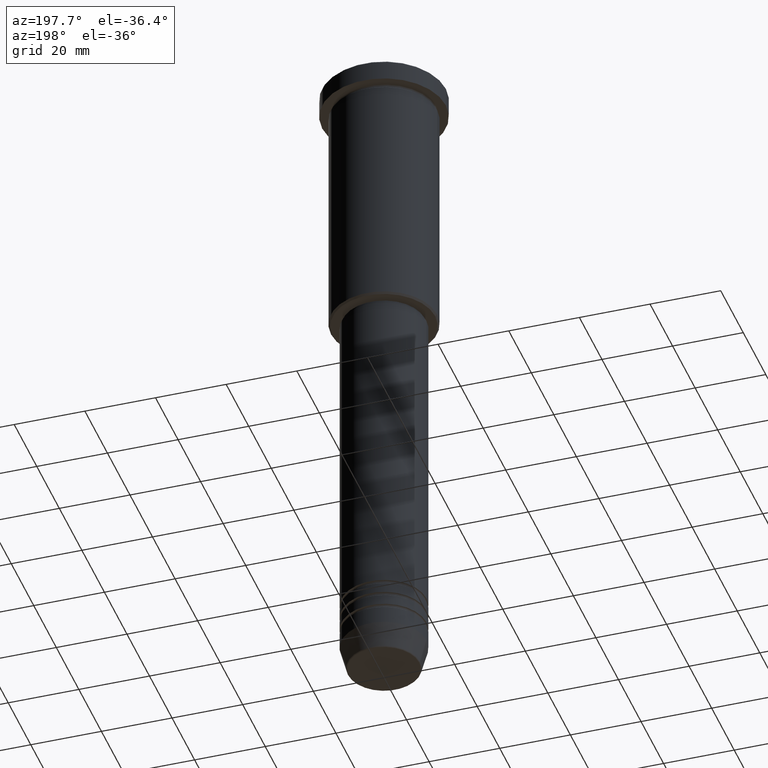
[diagram: clean part render]
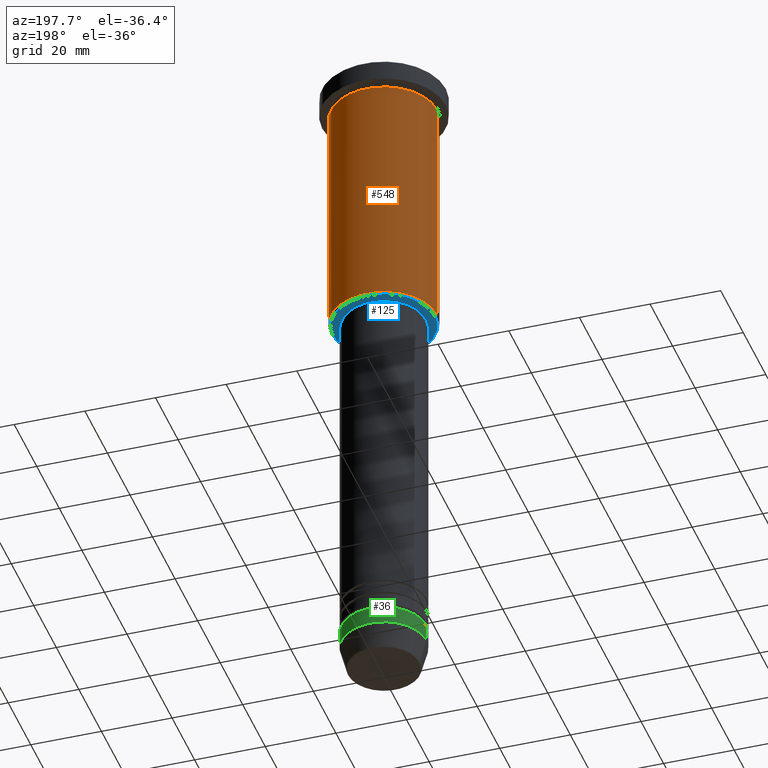
[diagram: same view with three faces highlighted in distinct colors, each labeled with its STEP entity id]
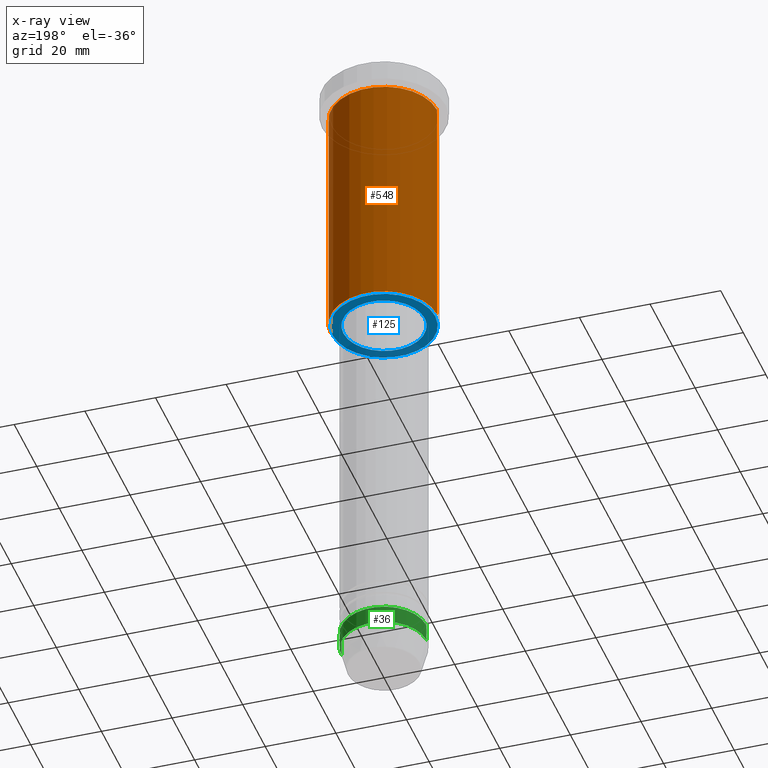
[diagram: x-ray of the same camera — body ghosted, the three highlighted faces saturated]
A machine part, auxiliary view with three faces highlighted in distinct colors.
The next image is the same camera in x-ray (body ghosted, the three faces saturated) — at least one of them is partly hidden behind the body in this view.
Their STEP definitions:

[orange] entity #548 — the highlighted cylindrical surface (partial cylindrical patch) has radius 15 mm, axis along (-0, -0, 1).
#70 = AXIS2_PLACEMENT_3D ( 'NONE', #976, #522, #1058 ) ;
#80 = VERTEX_POINT ( 'NONE', #568 ) ;
#87 = DIRECTION ( 'NONE',  ( -0.000000000000000000, -0.000000000000000000, 1.000000000000000000 ) ) ;
#164 = VERTEX_POINT ( 'NONE', #1177 ) ;
#174 = ORIENTED_EDGE ( 'NONE', *, *, #672, .T. ) ;
#261 = DIRECTION ( 'NONE',  ( -0.000000000000000000, -0.000000000000000000, 1.000000000000000000 ) ) ;
#293 = CARTESIAN_POINT ( 'NONE',  ( -15.00000000000000000, 1.836970198721029589E-15, -6.999999999999995559 ) ) ;
#296 = AXIS2_PLACEMENT_3D ( 'NONE', #1157, #870, #876 ) ;
#328 = CIRCLE ( 'NONE', #392, 15.00000000000000000 ) ;
#341 = CARTESIAN_POINT ( 'NONE',  ( -15.00000000000000000, 1.836970198721029589E-15, 0.000000000000000000 ) ) ;
#360 = DIRECTION ( 'NONE',  ( 1.000000000000000000, 0.000000000000000000, 0.000000000000000000 ) ) ;
#392 = AXIS2_PLACEMENT_3D ( 'NONE', #995, #261, #360 ) ;
#409 = EDGE_LOOP ( 'NONE', ( #899, #174, #1077, #651 ) ) ;
#490 = CARTESIAN_POINT ( 'NONE',  ( 15.00000000000000000, 0.000000000000000000, 0.000000000000000000 ) ) ;
#522 = DIRECTION ( 'NONE',  ( -0.000000000000000000, -0.000000000000000000, 1.000000000000000000 ) ) ;
#536 = LINE ( 'NONE', #341, #869 ) ;
#548 = ADVANCED_FACE ( 'NONE', ( #580 ), #860, .T. ) ;
#554 = CARTESIAN_POINT ( 'NONE',  ( -15.00000000000000000, 1.836970198721029589E-15, -75.49999999999997158 ) ) ;
#568 = CARTESIAN_POINT ( 'NONE',  ( 15.00000000000000000, 0.000000000000000000, -75.49999999999997158 ) ) ;
#580 = FACE_OUTER_BOUND ( 'NONE', #409, .T. ) ;
#599 = VECTOR ( 'NONE', #762, 1000.000000000000000 ) ;
#651 = ORIENTED_EDGE ( 'NONE', *, *, #816, .F. ) ;
#666 = EDGE_CURVE ( 'NONE', #164, #1108, #328, .T. ) ;
#672 = EDGE_CURVE ( 'NONE', #744, #1108, #536, .T. ) ;
#696 = EDGE_CURVE ( 'NONE', #80, #744, #1103, .T. ) ;
#744 = VERTEX_POINT ( 'NONE', #554 ) ;
#762 = DIRECTION ( 'NONE',  ( -0.000000000000000000, -0.000000000000000000, 1.000000000000000000 ) ) ;
#816 = EDGE_CURVE ( 'NONE', #80, #164, #1037, .T. ) ;
#860 = CYLINDRICAL_SURFACE ( 'NONE', #296, 15.00000000000000000 ) ;
#869 = VECTOR ( 'NONE', #87, 1000.000000000000000 ) ;
#870 = DIRECTION ( 'NONE',  ( -0.000000000000000000, -0.000000000000000000, 1.000000000000000000 ) ) ;
#876 = DIRECTION ( 'NONE',  ( 1.000000000000000000, 0.000000000000000000, 0.000000000000000000 ) ) ;
#899 = ORIENTED_EDGE ( 'NONE', *, *, #696, .T. ) ;
#976 = CARTESIAN_POINT ( 'NONE',  ( 0.000000000000000000, 0.000000000000000000, -75.49999999999997158 ) ) ;
#995 = CARTESIAN_POINT ( 'NONE',  ( 0.000000000000000000, 0.000000000000000000, -6.999999999999995559 ) ) ;
#1037 = LINE ( 'NONE', #490, #599 ) ;
#1058 = DIRECTION ( 'NONE',  ( -1.000000000000000000, 0.000000000000000000, 0.000000000000000000 ) ) ;
#1077 = ORIENTED_EDGE ( 'NONE', *, *, #666, .F. ) ;
#1103 = CIRCLE ( 'NONE', #70, 15.00000000000000000 ) ;
#1108 = VERTEX_POINT ( 'NONE', #293 ) ;
#1157 = CARTESIAN_POINT ( 'NONE',  ( 0.000000000000000000, 0.000000000000000000, 0.000000000000000000 ) ) ;
#1177 = CARTESIAN_POINT ( 'NONE',  ( 15.00000000000000000, 0.000000000000000000, -6.999999999999995559 ) ) ;

[blue] entity #125 — the highlighted planar face has unit normal (0, 0, -1).
#22 = DIRECTION ( 'NONE',  ( -0.000000000000000000, -0.000000000000000000, 1.000000000000000000 ) ) ;
#26 = FACE_OUTER_BOUND ( 'NONE', #246, .T. ) ;
#49 = VERTEX_POINT ( 'NONE', #307 ) ;
#59 = ORIENTED_EDGE ( 'NONE', *, *, #882, .T. ) ;
#64 = CARTESIAN_POINT ( 'NONE',  ( 0.000000000000000000, 0.000000000000000000, -76.00000000000001421 ) ) ;
#82 = CARTESIAN_POINT ( 'NONE',  ( 0.000000000000000000, 0.000000000000000000, -76.00000000000001421 ) ) ;
#98 = EDGE_LOOP ( 'NONE', ( #867, #927 ) ) ;
#103 = VERTEX_POINT ( 'NONE', #395 ) ;
#125 = ADVANCED_FACE ( 'NONE', ( #26, #133 ), #382, .T. ) ;
#133 = FACE_BOUND ( 'NONE', #98, .T. ) ;
#185 = ORIENTED_EDGE ( 'NONE', *, *, #579, .T. ) ;
#193 = DIRECTION ( 'NONE',  ( 1.000000000000000000, 0.000000000000000000, 0.000000000000000000 ) ) ;
#216 = DIRECTION ( 'NONE',  ( -1.000000000000000000, 0.000000000000000000, 0.000000000000000000 ) ) ;
#228 = EDGE_CURVE ( 'NONE', #103, #265, #604, .T. ) ;
#242 = AXIS2_PLACEMENT_3D ( 'NONE', #82, #353, #1002 ) ;
#246 = EDGE_LOOP ( 'NONE', ( #59, #185 ) ) ;
#265 = VERTEX_POINT ( 'NONE', #977 ) ;
#278 = CIRCLE ( 'NONE', #620, 14.49999999999998401 ) ;
#299 = DIRECTION ( 'NONE',  ( 0.000000000000000000, 0.000000000000000000, -1.000000000000000000 ) ) ;
#307 = CARTESIAN_POINT ( 'NONE',  ( -14.49999999999998401, 1.806354028742345013E-15, -76.00000000000001421 ) ) ;
#350 = AXIS2_PLACEMENT_3D ( 'NONE', #1008, #22, #193 ) ;
#353 = DIRECTION ( 'NONE',  ( -0.000000000000000000, -0.000000000000000000, 1.000000000000000000 ) ) ;
#382 = PLANE ( 'NONE',  #793 ) ;
#395 = CARTESIAN_POINT ( 'NONE',  ( 11.50000000000000000, 0.000000000000000000, -76.00000000000001421 ) ) ;
#418 = CARTESIAN_POINT ( 'NONE',  ( 0.000000000000000000, 0.000000000000000000, -76.00000000000001421 ) ) ;
#539 = DIRECTION ( 'NONE',  ( -1.000000000000000000, 0.000000000000000000, 0.000000000000000000 ) ) ;
#575 = DIRECTION ( 'NONE',  ( -1.000000000000000000, 0.000000000000000000, -0.000000000000000000 ) ) ;
#579 = EDGE_CURVE ( 'NONE', #49, #1013, #278, .T. ) ;
#604 = CIRCLE ( 'NONE', #242, 11.50000000000000000 ) ;
#620 = AXIS2_PLACEMENT_3D ( 'NONE', #418, #1151, #216 ) ;
#670 = CARTESIAN_POINT ( 'NONE',  ( 0.000000000000000000, 15.00000000000000000, -76.00000000000001421 ) ) ;
#772 = EDGE_CURVE ( 'NONE', #265, #103, #981, .T. ) ;
#793 = AXIS2_PLACEMENT_3D ( 'NONE', #670, #299, #575 ) ;
#867 = ORIENTED_EDGE ( 'NONE', *, *, #228, .T. ) ;
#882 = EDGE_CURVE ( 'NONE', #1013, #49, #1104, .T. ) ;
#927 = ORIENTED_EDGE ( 'NONE', *, *, #772, .T. ) ;
#951 = AXIS2_PLACEMENT_3D ( 'NONE', #64, #967, #539 ) ;
#967 = DIRECTION ( 'NONE',  ( 0.000000000000000000, 0.000000000000000000, -1.000000000000000000 ) ) ;
#977 = CARTESIAN_POINT ( 'NONE',  ( -11.50000000000000000, 1.408343819019456176E-15, -76.00000000000001421 ) ) ;
#981 = CIRCLE ( 'NONE', #350, 11.50000000000000000 ) ;
#1002 = DIRECTION ( 'NONE',  ( 1.000000000000000000, 0.000000000000000000, 0.000000000000000000 ) ) ;
#1006 = CARTESIAN_POINT ( 'NONE',  ( 14.49999999999998401, 0.000000000000000000, -76.00000000000001421 ) ) ;
#1008 = CARTESIAN_POINT ( 'NONE',  ( 0.000000000000000000, 0.000000000000000000, -76.00000000000001421 ) ) ;
#1013 = VERTEX_POINT ( 'NONE', #1006 ) ;
#1104 = CIRCLE ( 'NONE', #951, 14.49999999999998401 ) ;
#1151 = DIRECTION ( 'NONE',  ( 0.000000000000000000, 0.000000000000000000, -1.000000000000000000 ) ) ;

[green] entity #36 — the highlighted cylindrical surface (partial cylindrical patch) has radius 12 mm, axis along (-0, -0, 1).
#36 = ADVANCED_FACE ( 'NONE', ( #183 ), #543, .T. ) ;
#37 = AXIS2_PLACEMENT_3D ( 'NONE', #879, #885, #349 ) ;
#124 = LINE ( 'NONE', #1095, #132 ) ;
#132 = VECTOR ( 'NONE', #1101, 1000.000000000000000 ) ;
#138 = CARTESIAN_POINT ( 'NONE',  ( 0.000000000000000000, 0.000000000000000000, -179.0000000000000284 ) ) ;
#147 = ORIENTED_EDGE ( 'NONE', *, *, #848, .T. ) ;
#163 = EDGE_CURVE ( 'NONE', #1173, #272, #629, .T. ) ;
#183 = FACE_OUTER_BOUND ( 'NONE', #906, .T. ) ;
#272 = VERTEX_POINT ( 'NONE', #447 ) ;
#302 = AXIS2_PLACEMENT_3D ( 'NONE', #912, #457, #972 ) ;
#325 = CARTESIAN_POINT ( 'NONE',  ( 12.00000000000000000, 0.000000000000000000, -184.0000000000000000 ) ) ;
#349 = DIRECTION ( 'NONE',  ( 1.000000000000000000, 0.000000000000000000, 0.000000000000000000 ) ) ;
#396 = CARTESIAN_POINT ( 'NONE',  ( 12.00000000000000000, 0.000000000000000000, -179.0000000000000284 ) ) ;
#447 = CARTESIAN_POINT ( 'NONE',  ( -12.00000000000000000, 1.469576158976823947E-15, -179.0000000000000284 ) ) ;
#457 = DIRECTION ( 'NONE',  ( -0.000000000000000000, -0.000000000000000000, 1.000000000000000000 ) ) ;
#466 = CARTESIAN_POINT ( 'NONE',  ( -12.00000000000000000, 1.469576158976823947E-15, -184.0000000000000000 ) ) ;
#502 = DIRECTION ( 'NONE',  ( -0.000000000000000000, -0.000000000000000000, 1.000000000000000000 ) ) ;
#543 = CYLINDRICAL_SURFACE ( 'NONE', #302, 12.00000000000000000 ) ;
#629 = CIRCLE ( 'NONE', #1146, 12.00000000000000000 ) ;
#714 = LINE ( 'NONE', #803, #853 ) ;
#715 = ORIENTED_EDGE ( 'NONE', *, *, #745, .T. ) ;
#745 = EDGE_CURVE ( 'NONE', #765, #272, #124, .T. ) ;
#765 = VERTEX_POINT ( 'NONE', #466 ) ;
#803 = CARTESIAN_POINT ( 'NONE',  ( 12.00000000000000000, 0.000000000000000000, 0.000000000000000000 ) ) ;
#848 = EDGE_CURVE ( 'NONE', #878, #765, #1057, .T. ) ;
#853 = VECTOR ( 'NONE', #994, 1000.000000000000000 ) ;
#861 = DIRECTION ( 'NONE',  ( 1.000000000000000000, 0.000000000000000000, 0.000000000000000000 ) ) ;
#878 = VERTEX_POINT ( 'NONE', #325 ) ;
#879 = CARTESIAN_POINT ( 'NONE',  ( 0.000000000000000000, 0.000000000000000000, -184.0000000000000000 ) ) ;
#885 = DIRECTION ( 'NONE',  ( -0.000000000000000000, -0.000000000000000000, 1.000000000000000000 ) ) ;
#906 = EDGE_LOOP ( 'NONE', ( #147, #715, #1175, #1167 ) ) ;
#912 = CARTESIAN_POINT ( 'NONE',  ( 0.000000000000000000, 0.000000000000000000, 0.000000000000000000 ) ) ;
#945 = EDGE_CURVE ( 'NONE', #878, #1173, #714, .T. ) ;
#972 = DIRECTION ( 'NONE',  ( 1.000000000000000000, 0.000000000000000000, 0.000000000000000000 ) ) ;
#994 = DIRECTION ( 'NONE',  ( -0.000000000000000000, -0.000000000000000000, 1.000000000000000000 ) ) ;
#1057 = CIRCLE ( 'NONE', #37, 12.00000000000000000 ) ;
#1095 = CARTESIAN_POINT ( 'NONE',  ( -12.00000000000000000, 1.469576158976823947E-15, 0.000000000000000000 ) ) ;
#1101 = DIRECTION ( 'NONE',  ( -0.000000000000000000, -0.000000000000000000, 1.000000000000000000 ) ) ;
#1146 = AXIS2_PLACEMENT_3D ( 'NONE', #138, #502, #861 ) ;
#1167 = ORIENTED_EDGE ( 'NONE', *, *, #945, .F. ) ;
#1173 = VERTEX_POINT ( 'NONE', #396 ) ;
#1175 = ORIENTED_EDGE ( 'NONE', *, *, #163, .F. ) ;